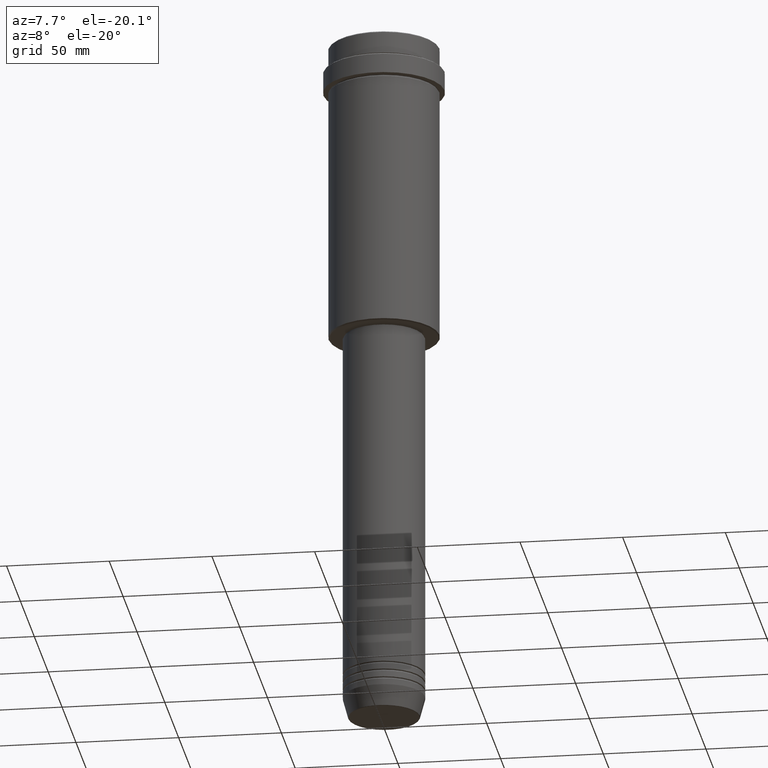
[diagram: clean part render]
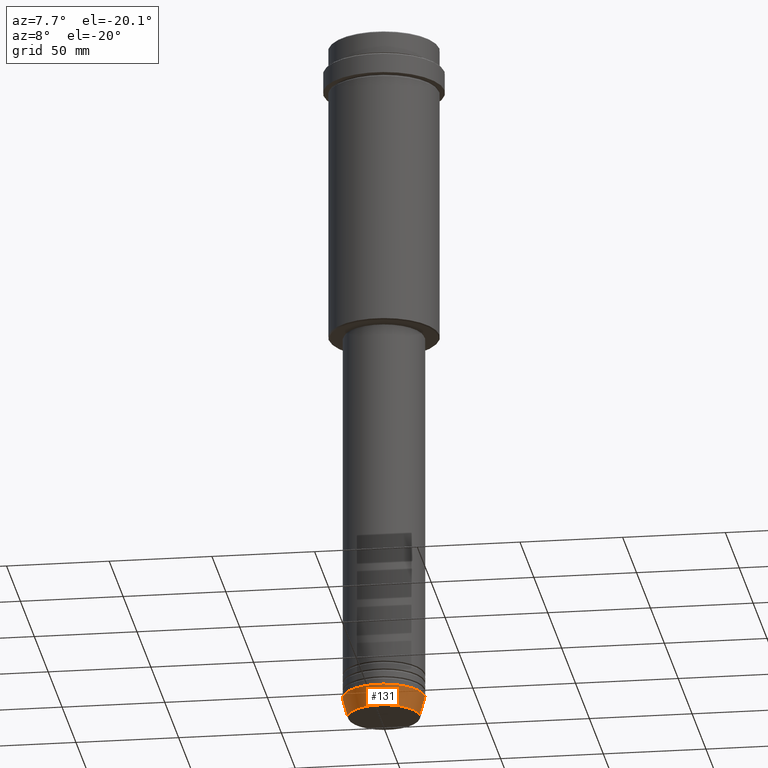
[diagram: same view with one face highlighted and labeled with its STEP entity id]
A machine part, auxiliary view. The second image highlights one B-rep face of the part: STEP entity #131.
In plain terms, the highlighted conical surface has half-angle 15 deg.
Its self-contained STEP definition (entity closure, byte-faithful):
#3 = CIRCLE ( 'NONE', #1397, 17.41980749484382684 ) ;
#23 = VECTOR ( 'NONE', #707, 1000.000000000000114 ) ;
#112 = VERTEX_POINT ( 'NONE', #947 ) ;
#131 = ADVANCED_FACE ( 'NONE', ( #1071 ), #402, .T. ) ;
#163 = CARTESIAN_POINT ( 'NONE',  ( 0.000000000000000000, 0.000000000000000000, -333.0000000000000000 ) ) ;
#183 = EDGE_CURVE ( 'NONE', #112, #328, #3, .T. ) ;
#221 = DIRECTION ( 'NONE',  ( -0.000000000000000000, -0.000000000000000000, 1.000000000000000000 ) ) ;
#222 = CARTESIAN_POINT ( 'NONE',  ( 20.00000000000000000, 0.000000000000000000, -333.0000000000000000 ) ) ;
#271 = DIRECTION ( 'NONE',  ( -0.000000000000000000, -0.000000000000000000, 1.000000000000000000 ) ) ;
#285 = CARTESIAN_POINT ( 'NONE',  ( 20.00000000000000000, 0.000000000000000000, -333.0000000000000000 ) ) ;
#295 = VECTOR ( 'NONE', #574, 1000.000000000000114 ) ;
#328 = VERTEX_POINT ( 'NONE', #1309 ) ;
#348 = ORIENTED_EDGE ( 'NONE', *, *, #183, .T. ) ;
#370 = LINE ( 'NONE', #720, #295 ) ;
#400 = ORIENTED_EDGE ( 'NONE', *, *, #591, .F. ) ;
#402 = CONICAL_SURFACE ( 'NONE', #916, 20.00000000000000000, 0.2617993877991499074 ) ;
#461 = ORIENTED_EDGE ( 'NONE', *, *, #703, .F. ) ;
#509 = EDGE_CURVE ( 'NONE', #328, #1122, #959, .T. ) ;
#574 = DIRECTION ( 'NONE',  ( -0.2588190451025211836, 3.169619151431770488E-17, 0.9659258262890680902 ) ) ;
#588 = CIRCLE ( 'NONE', #1015, 20.00000000000000000 ) ;
#591 = EDGE_CURVE ( 'NONE', #961, #1122, #588, .T. ) ;
#703 = EDGE_CURVE ( 'NONE', #112, #961, #370, .T. ) ;
#707 = DIRECTION ( 'NONE',  ( 0.2588190451025211836, 0.000000000000000000, 0.9659258262890680902 ) ) ;
#720 = CARTESIAN_POINT ( 'NONE',  ( -20.00000000000000000, 2.449293598294706513E-15, -333.0000000000000000 ) ) ;
#750 = ORIENTED_EDGE ( 'NONE', *, *, #509, .T. ) ;
#892 = CARTESIAN_POINT ( 'NONE',  ( 0.000000000000000000, 0.000000000000000000, -333.0000000000000000 ) ) ;
#916 = AXIS2_PLACEMENT_3D ( 'NONE', #163, #271, #1059 ) ;
#947 = CARTESIAN_POINT ( 'NONE',  ( -17.41980749484382684, 2.291302373663531915E-15, -342.6294095225512706 ) ) ;
#956 = CARTESIAN_POINT ( 'NONE',  ( -20.00000000000000000, 2.449293598294706513E-15, -333.0000000000000000 ) ) ;
#959 = LINE ( 'NONE', #285, #23 ) ;
#961 = VERTEX_POINT ( 'NONE', #956 ) ;
#962 = EDGE_LOOP ( 'NONE', ( #461, #348, #750, #400 ) ) ;
#983 = DIRECTION ( 'NONE',  ( -0.000000000000000000, -0.000000000000000000, 1.000000000000000000 ) ) ;
#1015 = AXIS2_PLACEMENT_3D ( 'NONE', #892, #221, #1310 ) ;
#1059 = DIRECTION ( 'NONE',  ( 1.000000000000000000, 0.000000000000000000, 0.000000000000000000 ) ) ;
#1071 = FACE_OUTER_BOUND ( 'NONE', #962, .T. ) ;
#1079 = CARTESIAN_POINT ( 'NONE',  ( 0.000000000000000000, 0.000000000000000000, -342.6294095225512706 ) ) ;
#1122 = VERTEX_POINT ( 'NONE', #222 ) ;
#1309 = CARTESIAN_POINT ( 'NONE',  ( 17.41980749484382684, 0.000000000000000000, -342.6294095225512706 ) ) ;
#1310 = DIRECTION ( 'NONE',  ( 1.000000000000000000, 0.000000000000000000, 0.000000000000000000 ) ) ;
#1397 = AXIS2_PLACEMENT_3D ( 'NONE', #1079, #983, #1413 ) ;
#1413 = DIRECTION ( 'NONE',  ( 1.000000000000000000, 0.000000000000000000, 0.000000000000000000 ) ) ;